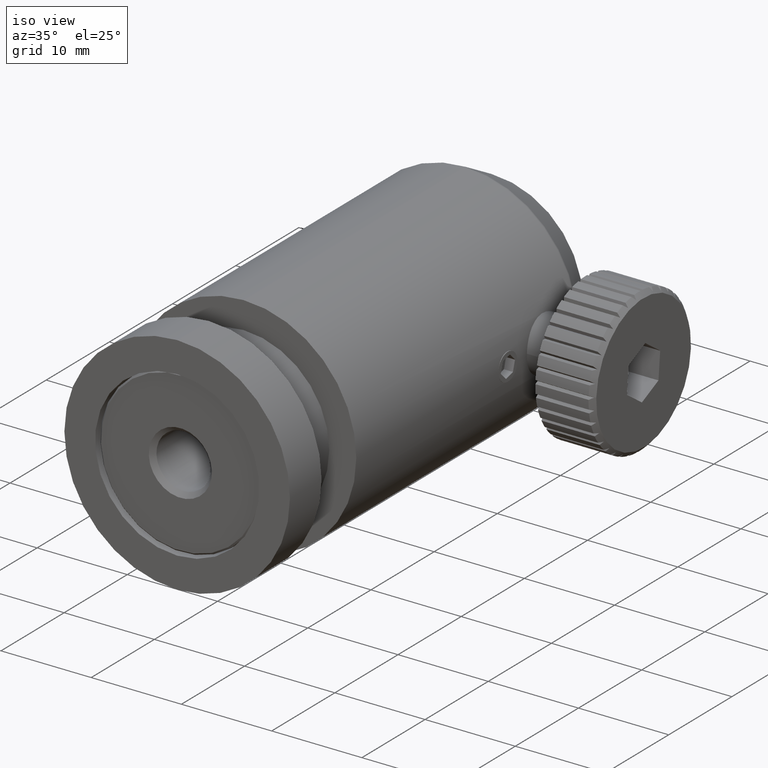
[diagram: clean part render]
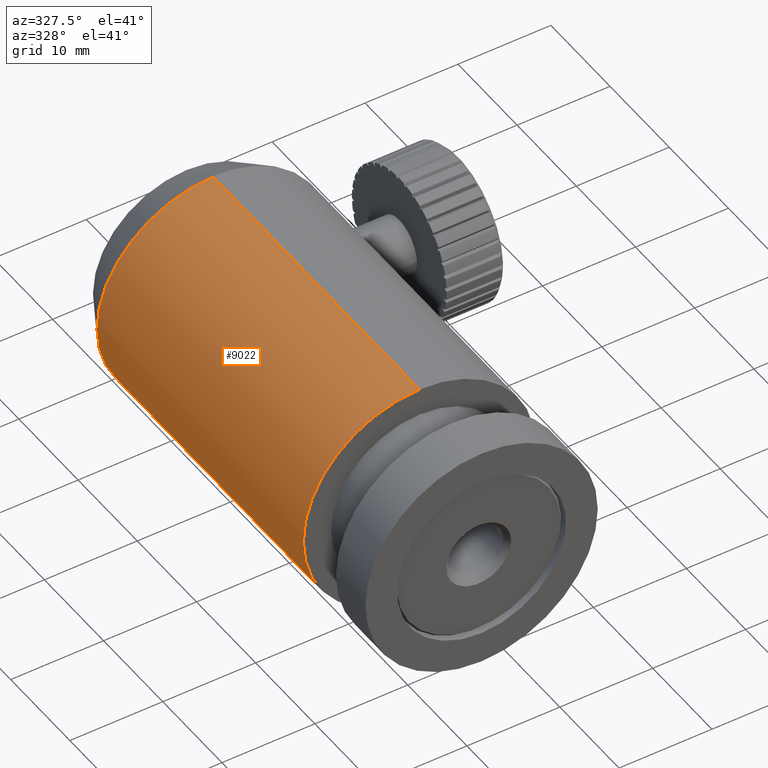
[diagram: tour spotlight — one face highlighted and labeled with its STEP entity id]
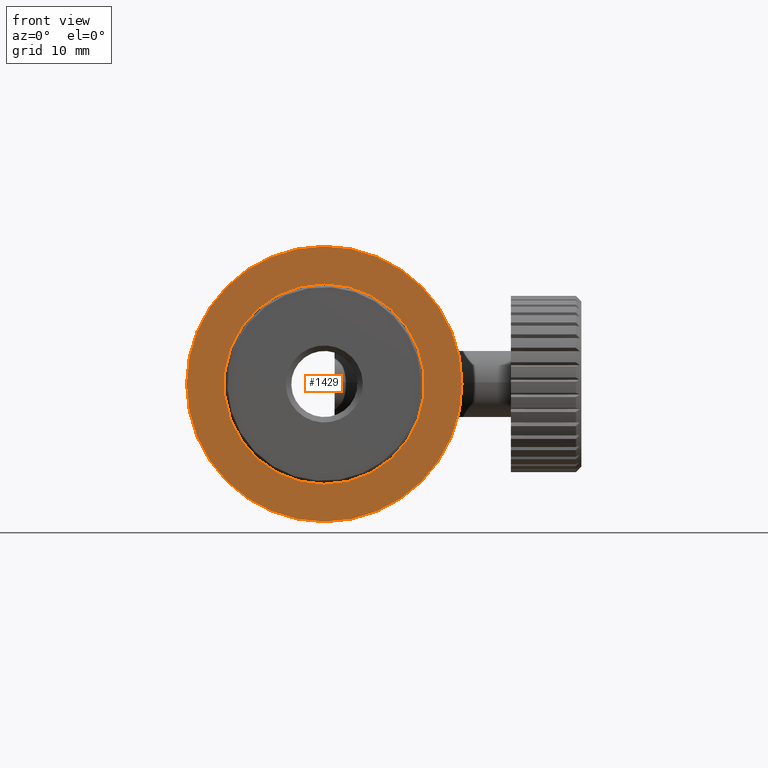
[diagram: tour spotlight — one face highlighted and labeled with its STEP entity id]
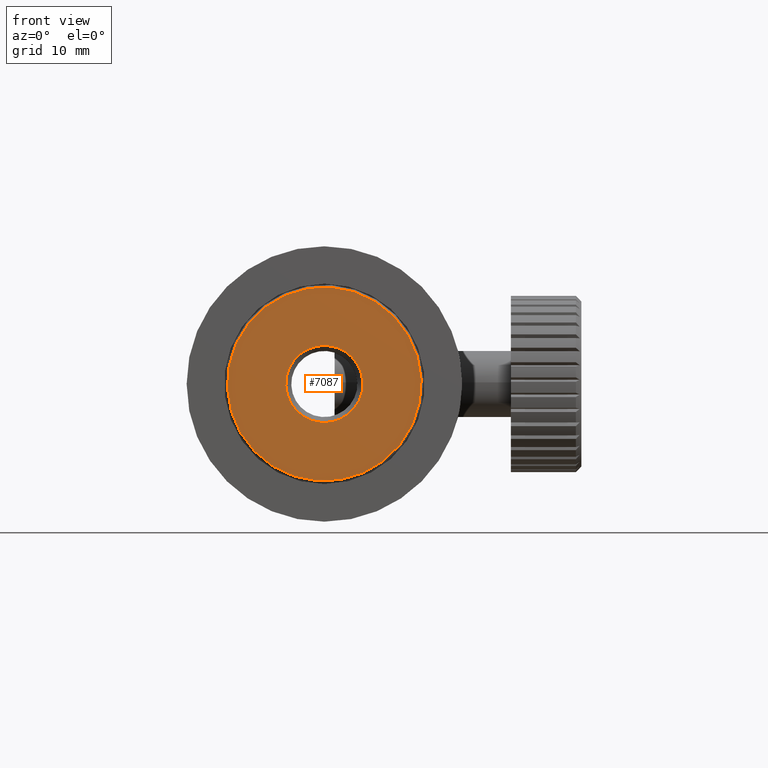
[diagram: tour spotlight — one face highlighted and labeled with its STEP entity id]
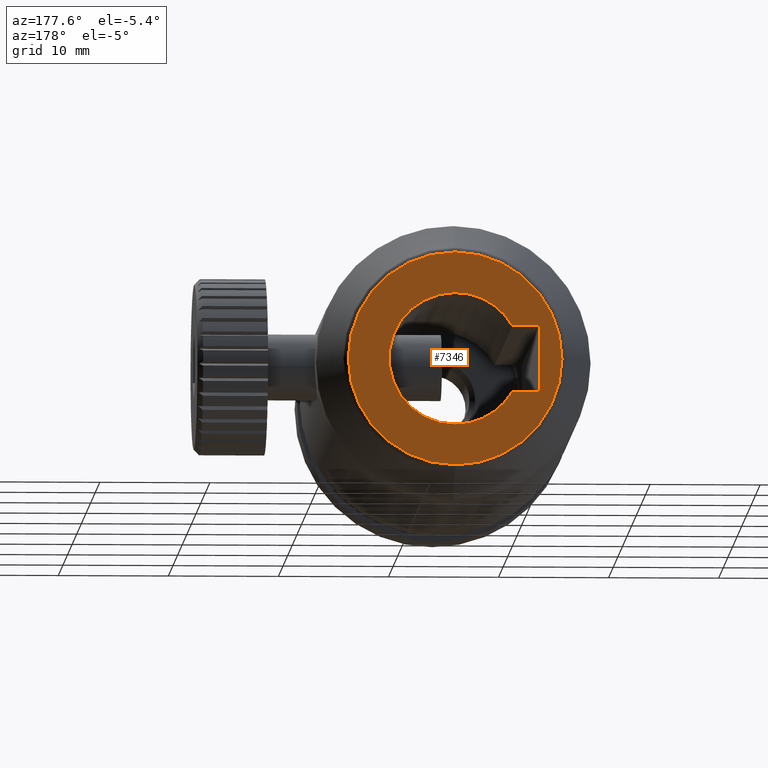
[diagram: tour spotlight — one face highlighted and labeled with its STEP entity id]
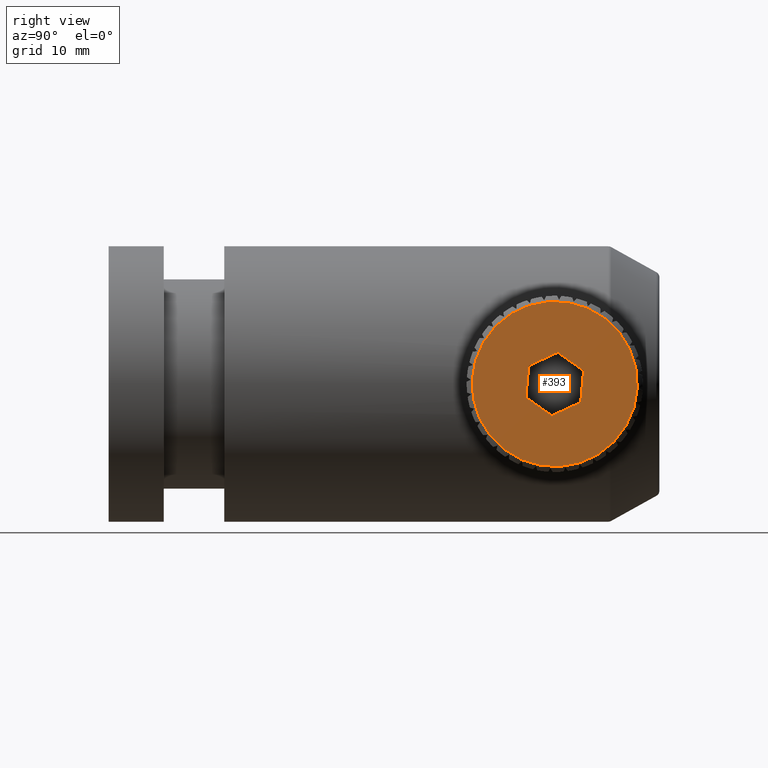
[diagram: tour spotlight — one face highlighted and labeled with its STEP entity id]
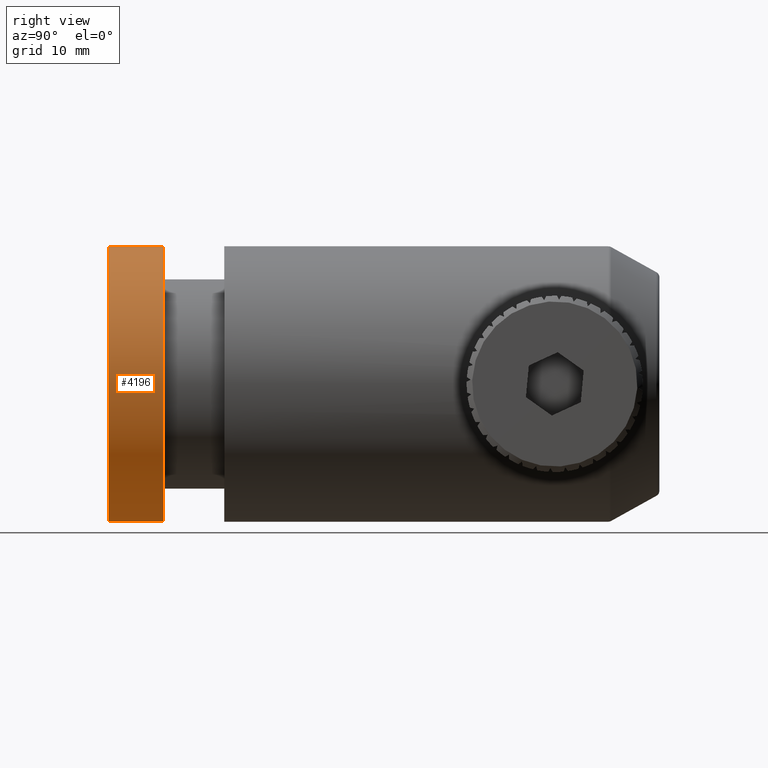
[diagram: tour spotlight — one face highlighted and labeled with its STEP entity id]
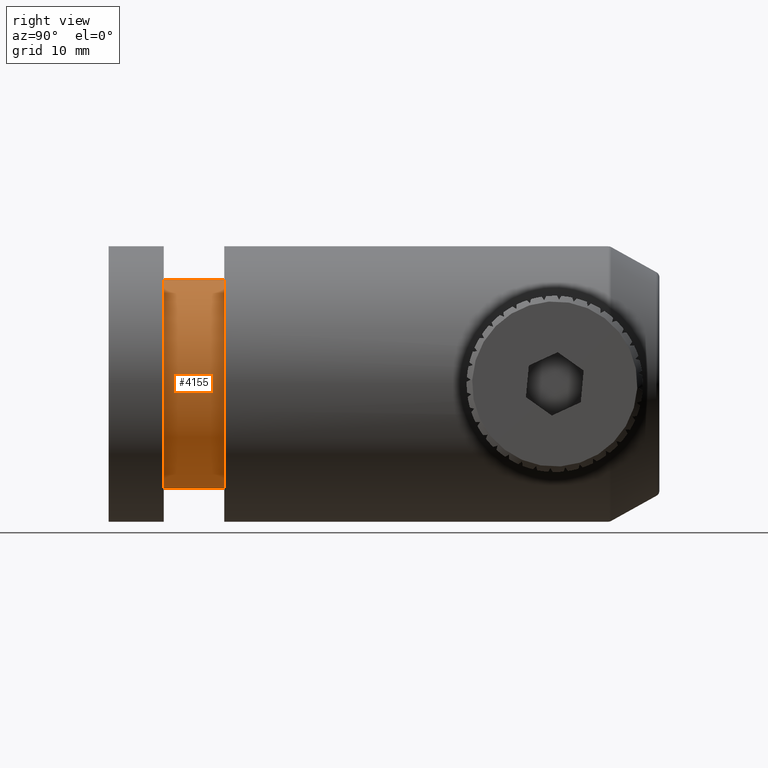
[diagram: tour spotlight — one face highlighted and labeled with its STEP entity id]
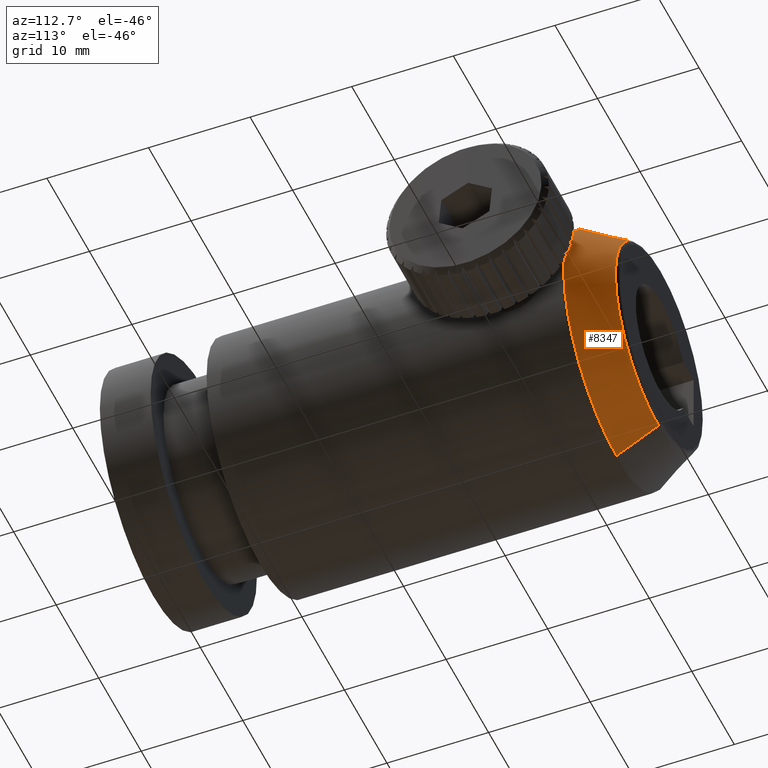
[diagram: tour spotlight — one face highlighted and labeled with its STEP entity id]
A machine part: a face-by-face anatomy tour. The part has 217 B-rep faces; the first image is the clean iso view, then the 8 largest visible faces are spotlighted one at a time (largest first), each with its STEP entity span.

Face 1 — auxiliary view, entity #9022. In plain terms, the highlighted cylindrical surface (partial cylindrical patch) has radius 12.5 mm, axis along (-0, -1, -0).
Definition (entity closure, byte-faithful):
#295 = CARTESIAN_POINT ( 'NONE',  ( -3.204778668925408081, -1.313612059609841731, 12.50000000000000000 ) ) ;
#614 = LINE ( 'NONE', #6234, #8294 ) ;
#933 = ORIENTED_EDGE ( 'NONE', *, *, #8578, .T. ) ;
#1431 = EDGE_CURVE ( 'NONE', #5788, #6335, #9014, .T. ) ;
#1667 = ORIENTED_EDGE ( 'NONE', *, *, #1431, .T. ) ;
#1834 = CIRCLE ( 'NONE', #2854, 12.50000000000000000 ) ;
#1974 = DIRECTION ( 'NONE',  ( 0.0000000000000000000, 0.0000000000000000000, 1.000000000000000000 ) ) ;
#2055 = VERTEX_POINT ( 'NONE', #5466 ) ;
#2651 = DIRECTION ( 'NONE',  ( 0.0000000000000000000, -1.000000000000000000, 0.0000000000000000000 ) ) ;
#2854 = AXIS2_PLACEMENT_3D ( 'NONE', #4682, #2651, #1974 ) ;
#2995 = AXIS2_PLACEMENT_3D ( 'NONE', #4891, #7797, #8338 ) ;
#3582 = EDGE_LOOP ( 'NONE', ( #4615, #933, #8678, #1667 ) ) ;
#3628 = EDGE_CURVE ( 'NONE', #5807, #6335, #614, .T. ) ;
#4103 = DIRECTION ( 'NONE',  ( -0.0000000000000000000, -1.000000000000000000, -0.0000000000000000000 ) ) ;
#4615 = ORIENTED_EDGE ( 'NONE', *, *, #3628, .F. ) ;
#4682 = CARTESIAN_POINT ( 'NONE',  ( -3.204778668925409857, 33.55682492629141933, -7.703719777548943412E-31 ) ) ;
#4891 = CARTESIAN_POINT ( 'NONE',  ( -3.204778668925409857, 38.18638794039016204, -7.703719777548943412E-31 ) ) ;
#5281 = LINE ( 'NONE', #6719, #6330 ) ;
#5339 = DIRECTION ( 'NONE',  ( 0.0000000000000000000, 1.000000000000000000, 0.0000000000000000000 ) ) ;
#5466 = CARTESIAN_POINT ( 'NONE',  ( -3.204778668925408081, 33.55682492629141933, -12.50000000000000000 ) ) ;
#5788 = VERTEX_POINT ( 'NONE', #8317 ) ;
#5807 = VERTEX_POINT ( 'NONE', #8879 ) ;
#6193 = EDGE_CURVE ( 'NONE', #2055, #5788, #5281, .T. ) ;
#6234 = CARTESIAN_POINT ( 'NONE',  ( -3.204778668925408081, 38.18638794039016204, 12.50000000000000000 ) ) ;
#6330 = VECTOR ( 'NONE', #4103, 1000.000000000000000 ) ;
#6335 = VERTEX_POINT ( 'NONE', #295 ) ;
#6719 = CARTESIAN_POINT ( 'NONE',  ( -3.204778668925409857, 38.18638794039016204, -12.50000000000000000 ) ) ;
#6800 = AXIS2_PLACEMENT_3D ( 'NONE', #8844, #5339, #8146 ) ;
#7624 = FACE_OUTER_BOUND ( 'NONE', #3582, .T. ) ;
#7797 = DIRECTION ( 'NONE',  ( -0.0000000000000000000, -1.000000000000000000, -0.0000000000000000000 ) ) ;
#8146 = DIRECTION ( 'NONE',  ( 0.0000000000000000000, 0.0000000000000000000, 1.000000000000000000 ) ) ;
#8294 = VECTOR ( 'NONE', #9033, 1000.000000000000000 ) ;
#8317 = CARTESIAN_POINT ( 'NONE',  ( -3.204778668925409857, -1.313612059609841731, -12.50000000000000000 ) ) ;
#8338 = DIRECTION ( 'NONE',  ( 0.0000000000000000000, 0.0000000000000000000, -1.000000000000000000 ) ) ;
#8578 = EDGE_CURVE ( 'NONE', #5807, #2055, #1834, .T. ) ;
#8678 = ORIENTED_EDGE ( 'NONE', *, *, #6193, .T. ) ;
#8844 = CARTESIAN_POINT ( 'NONE',  ( -3.204778668925409857, -1.313612059609841731, -7.703719777548943412E-31 ) ) ;
#8879 = CARTESIAN_POINT ( 'NONE',  ( -3.204778668925409857, 33.55682492629141933, 12.50000000000000000 ) ) ;
#8994 = CYLINDRICAL_SURFACE ( 'NONE', #2995, 12.50000000000000000 ) ;
#9014 = CIRCLE ( 'NONE', #6800, 12.50000000000000000 ) ;
#9022 = ADVANCED_FACE ( 'NONE', ( #7624 ), #8994, .T. ) ;
#9033 = DIRECTION ( 'NONE',  ( -0.0000000000000000000, -1.000000000000000000, -0.0000000000000000000 ) ) ;

Face 2 — front view, entity #1429. In plain terms, the highlighted planar face has unit normal (0, 1, 0).
Definition (entity closure, byte-faithful):
#60 = CARTESIAN_POINT ( 'NONE',  ( -3.204778668925409857, -11.81361205960983796, -7.703719777548943412E-31 ) ) ;
#75 = AXIS2_PLACEMENT_3D ( 'NONE', #60, #617, #2859 ) ;
#365 = EDGE_CURVE ( 'NONE', #1573, #1713, #7918, .T. ) ;
#388 = DIRECTION ( 'NONE',  ( 0.0000000000000000000, 1.000000000000000000, 0.0000000000000000000 ) ) ;
#427 = CARTESIAN_POINT ( 'NONE',  ( -3.204778668925409857, -11.81361205960983796, -7.703719777548943412E-31 ) ) ;
#537 = CARTESIAN_POINT ( 'NONE',  ( -3.204778668925408525, -11.81361205960983796, 9.099999999999999645 ) ) ;
#601 = EDGE_LOOP ( 'NONE', ( #4424, #1875 ) ) ;
#617 = DIRECTION ( 'NONE',  ( 0.0000000000000000000, -1.000000000000000000, 0.0000000000000000000 ) ) ;
#713 = AXIS2_PLACEMENT_3D ( 'NONE', #4689, #7513, #1202 ) ;
#979 = VERTEX_POINT ( 'NONE', #537 ) ;
#1119 = PLANE ( 'NONE',  #8569 ) ;
#1202 = DIRECTION ( 'NONE',  ( 0.0000000000000000000, 0.0000000000000000000, -1.000000000000000000 ) ) ;
#1429 = ADVANCED_FACE ( 'NONE', ( #7428, #3898 ), #1119, .F. ) ;
#1573 = VERTEX_POINT ( 'NONE', #6187 ) ;
#1713 = VERTEX_POINT ( 'NONE', #8458 ) ;
#1875 = ORIENTED_EDGE ( 'NONE', *, *, #5831, .F. ) ;
#2325 = CIRCLE ( 'NONE', #713, 9.099999999999999645 ) ;
#2355 = VERTEX_POINT ( 'NONE', #8779 ) ;
#2478 = DIRECTION ( 'NONE',  ( 0.0000000000000000000, 0.0000000000000000000, 1.000000000000000000 ) ) ;
#2859 = DIRECTION ( 'NONE',  ( 0.0000000000000000000, 0.0000000000000000000, -1.000000000000000000 ) ) ;
#3219 = DIRECTION ( 'NONE',  ( 0.0000000000000000000, 1.000000000000000000, 0.0000000000000000000 ) ) ;
#3439 = ORIENTED_EDGE ( 'NONE', *, *, #3491, .F. ) ;
#3491 = EDGE_CURVE ( 'NONE', #1713, #1573, #3734, .T. ) ;
#3734 = CIRCLE ( 'NONE', #6398, 12.50000000000000000 ) ;
#3898 = FACE_OUTER_BOUND ( 'NONE', #7587, .T. ) ;
#3993 = DIRECTION ( 'NONE',  ( 0.0000000000000000000, 0.0000000000000000000, 1.000000000000000000 ) ) ;
#4424 = ORIENTED_EDGE ( 'NONE', *, *, #9102, .F. ) ;
#4491 = DIRECTION ( 'NONE',  ( 0.0000000000000000000, 1.000000000000000000, 0.0000000000000000000 ) ) ;
#4689 = CARTESIAN_POINT ( 'NONE',  ( -3.204778668925409857, -11.81361205960983796, -7.703719777548943412E-31 ) ) ;
#5327 = CARTESIAN_POINT ( 'NONE',  ( -3.204778668925409857, -11.81361205960983796, -7.703719777548943412E-31 ) ) ;
#5831 = EDGE_CURVE ( 'NONE', #979, #2355, #2325, .T. ) ;
#6045 = DIRECTION ( 'NONE',  ( 0.0000000000000000000, -0.0000000000000000000, 1.000000000000000000 ) ) ;
#6146 = CARTESIAN_POINT ( 'NONE',  ( -3.204778668925409857, -11.81361205960983796, -7.703719777548943412E-31 ) ) ;
#6187 = CARTESIAN_POINT ( 'NONE',  ( -3.204778668925408081, -11.81361205960983796, 12.50000000000000000 ) ) ;
#6398 = AXIS2_PLACEMENT_3D ( 'NONE', #6146, #388, #3993 ) ;
#7134 = CIRCLE ( 'NONE', #75, 9.099999999999999645 ) ;
#7428 = FACE_BOUND ( 'NONE', #601, .T. ) ;
#7513 = DIRECTION ( 'NONE',  ( 0.0000000000000000000, -1.000000000000000000, 0.0000000000000000000 ) ) ;
#7587 = EDGE_LOOP ( 'NONE', ( #3439, #8638 ) ) ;
#7918 = CIRCLE ( 'NONE', #9094, 12.50000000000000000 ) ;
#8458 = CARTESIAN_POINT ( 'NONE',  ( -3.204778668925409857, -11.81361205960983796, -12.50000000000000000 ) ) ;
#8569 = AXIS2_PLACEMENT_3D ( 'NONE', #427, #3219, #6045 ) ;
#8638 = ORIENTED_EDGE ( 'NONE', *, *, #365, .F. ) ;
#8779 = CARTESIAN_POINT ( 'NONE',  ( -3.204778668925409857, -11.81361205960983796, -9.099999999999999645 ) ) ;
#9094 = AXIS2_PLACEMENT_3D ( 'NONE', #5327, #4491, #2478 ) ;
#9102 = EDGE_CURVE ( 'NONE', #2355, #979, #7134, .T. ) ;

Face 3 — front view, entity #7087. In plain terms, the highlighted planar face has unit normal (-0, 1, 0).
Definition (entity closure, byte-faithful):
#70 = AXIS2_PLACEMENT_3D ( 'NONE', #6240, #5579, #6934 ) ;
#666 = ORIENTED_EDGE ( 'NONE', *, *, #9025, .T. ) ;
#947 = EDGE_LOOP ( 'NONE', ( #666, #8651 ) ) ;
#1042 = VERTEX_POINT ( 'NONE', #1231 ) ;
#1231 = CARTESIAN_POINT ( 'NONE',  ( -5.937706456030204194, -11.31361205960983618, -8.364873323037858910 ) ) ;
#1411 = CIRCLE ( 'NONE', #3733, 3.500000000000000000 ) ;
#1469 = EDGE_LOOP ( 'NONE', ( #8549, #6176 ) ) ;
#1695 = CIRCLE ( 'NONE', #7292, 8.799999999999995381 ) ;
#2011 = EDGE_CURVE ( 'NONE', #1042, #6655, #1695, .T. ) ;
#2084 = CARTESIAN_POINT ( 'NONE',  ( -4.291738584251182154, -11.31361205960983618, -3.326938253480967500 ) ) ;
#2421 = CARTESIAN_POINT ( 'NONE',  ( -0.4718508818206141320, -11.31361205960983618, 8.364873323037858910 ) ) ;
#2537 = DIRECTION ( 'NONE',  ( 0.0000000000000000000, 1.000000000000000000, 0.0000000000000000000 ) ) ;
#2624 = CARTESIAN_POINT ( 'NONE',  ( -3.204778668925409857, -11.31361205960983618, -7.703719777548943412E-31 ) ) ;
#2842 = EDGE_CURVE ( 'NONE', #4000, #7498, #1411, .T. ) ;
#3293 = DIRECTION ( 'NONE',  ( -0.0000000000000000000, -1.000000000000000000, -0.0000000000000000000 ) ) ;
#3507 = AXIS2_PLACEMENT_3D ( 'NONE', #7120, #8528, #5035 ) ;
#3656 = DIRECTION ( 'NONE',  ( 0.3105599758073633310, 0.0000000000000000000, 0.9505537867088478254 ) ) ;
#3680 = FACE_BOUND ( 'NONE', #1469, .T. ) ;
#3684 = CIRCLE ( 'NONE', #5749, 3.500000000000000000 ) ;
#3733 = AXIS2_PLACEMENT_3D ( 'NONE', #2624, #2537, #6047 ) ;
#4000 = VERTEX_POINT ( 'NONE', #7278 ) ;
#4022 = CARTESIAN_POINT ( 'NONE',  ( -3.204778668925409857, -11.31361205960983618, -7.703719777548943412E-31 ) ) ;
#5035 = DIRECTION ( 'NONE',  ( 0.3105599758073633310, 0.0000000000000000000, 0.9505537867088479365 ) ) ;
#5579 = DIRECTION ( 'NONE',  ( -0.0000000000000000000, -1.000000000000000000, -0.0000000000000000000 ) ) ;
#5749 = AXIS2_PLACEMENT_3D ( 'NONE', #8500, #7098, #3656 ) ;
#5768 = FACE_OUTER_BOUND ( 'NONE', #947, .T. ) ;
#6047 = DIRECTION ( 'NONE',  ( 0.3105599758073633310, 0.0000000000000000000, 0.9505537867088478254 ) ) ;
#6176 = ORIENTED_EDGE ( 'NONE', *, *, #2842, .T. ) ;
#6240 = CARTESIAN_POINT ( 'NONE',  ( -3.204778668925409857, -11.31361205960983618, -7.703719777548943412E-31 ) ) ;
#6537 = CIRCLE ( 'NONE', #70, 8.799999999999995381 ) ;
#6655 = VERTEX_POINT ( 'NONE', #2421 ) ;
#6864 = DIRECTION ( 'NONE',  ( 0.3105599758073633310, 0.0000000000000000000, 0.9505537867088479365 ) ) ;
#6934 = DIRECTION ( 'NONE',  ( 0.3105599758073633310, 0.0000000000000000000, 0.9505537867088479365 ) ) ;
#7087 = ADVANCED_FACE ( 'NONE', ( #3680, #5768 ), #8624, .F. ) ;
#7098 = DIRECTION ( 'NONE',  ( 0.0000000000000000000, 1.000000000000000000, 0.0000000000000000000 ) ) ;
#7120 = CARTESIAN_POINT ( 'NONE',  ( -3.204778668925409857, -11.31361205960983618, -7.703719777548943412E-31 ) ) ;
#7278 = CARTESIAN_POINT ( 'NONE',  ( -2.117818753599638004, -11.31361205960983618, 3.326938253480967500 ) ) ;
#7292 = AXIS2_PLACEMENT_3D ( 'NONE', #4022, #3293, #6864 ) ;
#7498 = VERTEX_POINT ( 'NONE', #2084 ) ;
#8196 = EDGE_CURVE ( 'NONE', #7498, #4000, #3684, .T. ) ;
#8500 = CARTESIAN_POINT ( 'NONE',  ( -3.204778668925409857, -11.31361205960983618, -7.703719777548943412E-31 ) ) ;
#8528 = DIRECTION ( 'NONE',  ( -0.0000000000000000000, 1.000000000000000000, 0.0000000000000000000 ) ) ;
#8549 = ORIENTED_EDGE ( 'NONE', *, *, #8196, .T. ) ;
#8624 = PLANE ( 'NONE',  #3507 ) ;
#8651 = ORIENTED_EDGE ( 'NONE', *, *, #2011, .T. ) ;
#9025 = EDGE_CURVE ( 'NONE', #6655, #1042, #6537, .T. ) ;

Face 4 — auxiliary view, entity #7346. In plain terms, the highlighted planar face has unit normal (0, 1, 0).
Definition (entity closure, byte-faithful):
#168 = VERTEX_POINT ( 'NONE', #5837 ) ;
#211 = CIRCLE ( 'NONE', #7447, 6.000000000000000000 ) ;
#238 = DIRECTION ( 'NONE',  ( -1.000000000000000000, -0.0000000000000000000, -0.0000000000000000000 ) ) ;
#391 = DIRECTION ( 'NONE',  ( 0.0000000000000000000, -0.0000000000000000000, 1.000000000000000000 ) ) ;
#974 = LINE ( 'NONE', #7157, #1639 ) ;
#1224 = VERTEX_POINT ( 'NONE', #2987 ) ;
#1559 = VERTEX_POINT ( 'NONE', #3484 ) ;
#1600 = ORIENTED_EDGE ( 'NONE', *, *, #7703, .F. ) ;
#1604 = AXIS2_PLACEMENT_3D ( 'NONE', #8897, #8856, #6796 ) ;
#1639 = VECTOR ( 'NONE', #238, 1000.000000000000000 ) ;
#1726 = ORIENTED_EDGE ( 'NONE', *, *, #1851, .T. ) ;
#1851 = EDGE_CURVE ( 'NONE', #168, #1224, #9051, .T. ) ;
#1881 = EDGE_CURVE ( 'NONE', #1559, #5856, #2570, .T. ) ;
#1889 = AXIS2_PLACEMENT_3D ( 'NONE', #3991, #2628, #9030 ) ;
#1959 = VERTEX_POINT ( 'NONE', #4111 ) ;
#2316 = VECTOR ( 'NONE', #5290, 1000.000000000000000 ) ;
#2386 = CARTESIAN_POINT ( 'NONE',  ( -10.85477866892541066, 38.18638794039016204, 3.000000000000000000 ) ) ;
#2400 = CARTESIAN_POINT ( 'NONE',  ( -10.85477866892541066, 38.18638794039016204, -3.000000000000000000 ) ) ;
#2422 = AXIS2_PLACEMENT_3D ( 'NONE', #8401, #6798, #2546 ) ;
#2435 = CARTESIAN_POINT ( 'NONE',  ( -3.204778668925409857, 38.18638794039016204, -7.703719777548943412E-31 ) ) ;
#2546 = DIRECTION ( 'NONE',  ( 0.0000000000000000000, 0.0000000000000000000, 1.000000000000000000 ) ) ;
#2570 = LINE ( 'NONE', #2386, #7150 ) ;
#2592 = DIRECTION ( 'NONE',  ( 0.0000000000000000000, 0.0000000000000000000, 1.000000000000000000 ) ) ;
#2594 = VERTEX_POINT ( 'NONE', #6812 ) ;
#2628 = DIRECTION ( 'NONE',  ( 0.0000000000000000000, 1.000000000000000000, 0.0000000000000000000 ) ) ;
#2705 = CARTESIAN_POINT ( 'NONE',  ( -8.400931091632044101, 38.18638794039016204, 2.999999999999996003 ) ) ;
#2755 = VERTEX_POINT ( 'NONE', #2400 ) ;
#2947 = ORIENTED_EDGE ( 'NONE', *, *, #5219, .F. ) ;
#2987 = CARTESIAN_POINT ( 'NONE',  ( -3.204778668925408525, 38.18638794039016204, -9.705798325500706980 ) ) ;
#3224 = EDGE_CURVE ( 'NONE', #1959, #2594, #211, .T. ) ;
#3232 = CARTESIAN_POINT ( 'NONE',  ( -3.204778668925409857, 38.18638794039016204, -7.703719777548943412E-31 ) ) ;
#3484 = CARTESIAN_POINT ( 'NONE',  ( -10.85477866892541066, 38.18638794039016204, 3.000000000000000000 ) ) ;
#3758 = EDGE_LOOP ( 'NONE', ( #1726, #5904 ) ) ;
#3843 = CARTESIAN_POINT ( 'NONE',  ( -10.85477866892541066, 38.18638794039016204, -3.000000000000000000 ) ) ;
#3991 = CARTESIAN_POINT ( 'NONE',  ( -3.204778668925409857, 38.18638794039016204, -7.703719777548943412E-31 ) ) ;
#4091 = CIRCLE ( 'NONE', #1604, 6.000000000000000000 ) ;
#4111 = CARTESIAN_POINT ( 'NONE',  ( -3.204778668925409857, 38.18638794039016204, 6.000000000000000000 ) ) ;
#4466 = CIRCLE ( 'NONE', #2422, 6.000000000000000000 ) ;
#4684 = DIRECTION ( 'NONE',  ( 0.0000000000000000000, 0.0000000000000000000, 1.000000000000000000 ) ) ;
#4910 = EDGE_CURVE ( 'NONE', #1224, #168, #5408, .T. ) ;
#5133 = ORIENTED_EDGE ( 'NONE', *, *, #8766, .F. ) ;
#5219 = EDGE_CURVE ( 'NONE', #2755, #1559, #6730, .T. ) ;
#5290 = DIRECTION ( 'NONE',  ( 1.445602896647339163E-16, 0.0000000000000000000, 1.000000000000000000 ) ) ;
#5396 = FACE_OUTER_BOUND ( 'NONE', #3758, .T. ) ;
#5408 = CIRCLE ( 'NONE', #1889, 9.705798325500706980 ) ;
#5447 = CARTESIAN_POINT ( 'NONE',  ( -3.204778668925409857, 38.18638794039016204, -7.703719777548943412E-31 ) ) ;
#5449 = ORIENTED_EDGE ( 'NONE', *, *, #7288, .F. ) ;
#5837 = CARTESIAN_POINT ( 'NONE',  ( -3.204778668925409857, 38.18638794039016204, 9.705798325500706980 ) ) ;
#5856 = VERTEX_POINT ( 'NONE', #2705 ) ;
#5889 = DIRECTION ( 'NONE',  ( 0.0000000000000000000, 1.000000000000000000, 0.0000000000000000000 ) ) ;
#5904 = ORIENTED_EDGE ( 'NONE', *, *, #4910, .T. ) ;
#6100 = DIRECTION ( 'NONE',  ( 0.0000000000000000000, 1.000000000000000000, 0.0000000000000000000 ) ) ;
#6104 = ORIENTED_EDGE ( 'NONE', *, *, #3224, .F. ) ;
#6204 = CARTESIAN_POINT ( 'NONE',  ( -8.400931091632042325, 38.18638794039016204, -3.000000000000000000 ) ) ;
#6654 = FACE_BOUND ( 'NONE', #8127, .T. ) ;
#6702 = DIRECTION ( 'NONE',  ( 0.0000000000000000000, 1.000000000000000000, 0.0000000000000000000 ) ) ;
#6730 = LINE ( 'NONE', #3843, #2316 ) ;
#6749 = PLANE ( 'NONE',  #7931 ) ;
#6796 = DIRECTION ( 'NONE',  ( 0.0000000000000000000, 0.0000000000000000000, 1.000000000000000000 ) ) ;
#6798 = DIRECTION ( 'NONE',  ( 0.0000000000000000000, 1.000000000000000000, 0.0000000000000000000 ) ) ;
#6812 = CARTESIAN_POINT ( 'NONE',  ( -3.204778668925408969, 38.18638794039016204, -6.000000000000000000 ) ) ;
#6933 = ORIENTED_EDGE ( 'NONE', *, *, #1881, .F. ) ;
#6998 = VERTEX_POINT ( 'NONE', #6204 ) ;
#7150 = VECTOR ( 'NONE', #8095, 1000.000000000000000 ) ;
#7157 = CARTESIAN_POINT ( 'NONE',  ( -10.85477866892541066, 38.18638794039016204, -3.000000000000000000 ) ) ;
#7288 = EDGE_CURVE ( 'NONE', #5856, #1959, #4091, .T. ) ;
#7346 = ADVANCED_FACE ( 'NONE', ( #6654, #5396 ), #6749, .T. ) ;
#7447 = AXIS2_PLACEMENT_3D ( 'NONE', #5447, #6100, #2592 ) ;
#7703 = EDGE_CURVE ( 'NONE', #6998, #2755, #974, .T. ) ;
#7931 = AXIS2_PLACEMENT_3D ( 'NONE', #3232, #6702, #391 ) ;
#8095 = DIRECTION ( 'NONE',  ( 1.000000000000000000, 0.0000000000000000000, -1.767350478518959134E-15 ) ) ;
#8127 = EDGE_LOOP ( 'NONE', ( #2947, #1600, #5133, #6104, #5449, #6933 ) ) ;
#8307 = AXIS2_PLACEMENT_3D ( 'NONE', #2435, #5889, #4684 ) ;
#8401 = CARTESIAN_POINT ( 'NONE',  ( -3.204778668925409857, 38.18638794039016204, -7.703719777548943412E-31 ) ) ;
#8766 = EDGE_CURVE ( 'NONE', #2594, #6998, #4466, .T. ) ;
#8856 = DIRECTION ( 'NONE',  ( 0.0000000000000000000, 1.000000000000000000, 0.0000000000000000000 ) ) ;
#8897 = CARTESIAN_POINT ( 'NONE',  ( -3.204778668925409857, 38.18638794039016204, -7.703719777548943412E-31 ) ) ;
#9030 = DIRECTION ( 'NONE',  ( 0.0000000000000000000, 0.0000000000000000000, 1.000000000000000000 ) ) ;
#9051 = CIRCLE ( 'NONE', #8307, 9.705798325500706980 ) ;

Face 5 — right view, entity #393. In plain terms, the highlighted planar face has unit normal (-1, -0, 0).
Definition (entity closure, byte-faithful):
#109 = EDGE_CURVE ( 'NONE', #4941, #6290, #7559, .T. ) ;
#334 = CARTESIAN_POINT ( 'NONE',  ( 20.13128916436951243, 26.33031268923695123, 1.668005618766498444 ) ) ;
#351 = AXIS2_PLACEMENT_3D ( 'NONE', #1836, #7324, #5885 ) ;
#359 = VECTOR ( 'NONE', #1086, 1000.000000000000000 ) ;
#393 = ADVANCED_FACE ( 'NONE', ( #1694, #8132 ), #3740, .F. ) ;
#646 = CARTESIAN_POINT ( 'NONE',  ( 20.13128916436951243, 28.41989032645981794, -2.874423830109741562 ) ) ;
#651 = DIRECTION ( 'NONE',  ( 1.000000000000000000, 1.264548628736567753E-17, -2.220446049250312588E-16 ) ) ;
#914 = LINE ( 'NONE', #1474, #4877 ) ;
#1086 = DIRECTION ( 'NONE',  ( 1.395582776585113026E-16, -0.8161684082905975579, 0.5778140958027871976 ) ) ;
#1180 = LINE ( 'NONE', #2506, #359 ) ;
#1408 = ORIENTED_EDGE ( 'NONE', *, *, #4995, .T. ) ;
#1419 = LINE ( 'NONE', #5781, #4782 ) ;
#1474 = CARTESIAN_POINT ( 'NONE',  ( 20.13128916436951243, 26.06381507530659647, -1.206418211343244895 ) ) ;
#1481 = DIRECTION ( 'NONE',  ( 0.0000000000000000000, -0.9987437986324323447, 0.05010813001160041580 ) ) ;
#1541 = VERTEX_POINT ( 'NONE', #646 ) ;
#1650 = CARTESIAN_POINT ( 'NONE',  ( 20.13128916436951243, 36.17696643013342594, -0.3758109750870026189 ) ) ;
#1694 = FACE_BOUND ( 'NONE', #6659, .T. ) ;
#1836 = CARTESIAN_POINT ( 'NONE',  ( 20.13128916436951243, 28.68638794039017270, -1.556053078393199604E-30 ) ) ;
#2116 = EDGE_CURVE ( 'NONE', #1541, #4941, #1419, .T. ) ;
#2506 = CARTESIAN_POINT ( 'NONE',  ( 20.13128916436951243, 31.30896080547375249, 1.206418211343244895 ) ) ;
#2529 = LINE ( 'NONE', #8007, #8636 ) ;
#2800 = DIRECTION ( 'NONE',  ( 2.208183136120873328E-16, 0.09231748148465018788, 0.9957296232473609177 ) ) ;
#3024 = VERTEX_POINT ( 'NONE', #334 ) ;
#3051 = AXIS2_PLACEMENT_3D ( 'NONE', #8238, #651, #3443 ) ;
#3341 = CARTESIAN_POINT ( 'NONE',  ( 20.13128916436951243, 21.19580945064692301, 0.3758109750870035071 ) ) ;
#3443 = DIRECTION ( 'NONE',  ( 0.0000000000000000000, -0.9987437986324323447, 0.05010813001160041580 ) ) ;
#3481 = CARTESIAN_POINT ( 'NONE',  ( 20.13128916436951243, 31.04246319154339773, -1.668005618766497555 ) ) ;
#3483 = ORIENTED_EDGE ( 'NONE', *, *, #2116, .F. ) ;
#3596 = ORIENTED_EDGE ( 'NONE', *, *, #109, .F. ) ;
#3601 = DIRECTION ( 'NONE',  ( 8.126003595357596861E-17, 0.9084858897752480233, 0.4179155274445735535 ) ) ;
#3663 = CARTESIAN_POINT ( 'NONE',  ( 20.13128916436951243, 28.68638794039017270, -1.556053078393199604E-30 ) ) ;
#3740 = PLANE ( 'NONE',  #351 ) ;
#3774 = CIRCLE ( 'NONE', #8946, 7.500000000000007994 ) ;
#3973 = CARTESIAN_POINT ( 'NONE',  ( 20.13128916436951243, 31.30896080547375249, 1.206418211343244895 ) ) ;
#4256 = DIRECTION ( 'NONE',  ( -1.395582776585113026E-16, 0.8161684082905976689, -0.5778140958027870866 ) ) ;
#4400 = ORIENTED_EDGE ( 'NONE', *, *, #4939, .T. ) ;
#4419 = DIRECTION ( 'NONE',  ( -2.208183136120873328E-16, -0.09231748148465016013, -0.9957296232473609177 ) ) ;
#4782 = VECTOR ( 'NONE', #3601, 999.9999999999998863 ) ;
#4877 = VECTOR ( 'NONE', #4256, 999.9999999999998863 ) ;
#4939 = EDGE_CURVE ( 'NONE', #5839, #8436, #7042, .T. ) ;
#4941 = VERTEX_POINT ( 'NONE', #8987 ) ;
#4950 = ORIENTED_EDGE ( 'NONE', *, *, #8925, .F. ) ;
#4995 = EDGE_CURVE ( 'NONE', #8436, #5839, #3774, .T. ) ;
#5232 = CARTESIAN_POINT ( 'NONE',  ( 20.13128916436951243, 26.06381507530659647, -1.206418211343244895 ) ) ;
#5240 = VECTOR ( 'NONE', #2800, 1000.000000000000000 ) ;
#5547 = LINE ( 'NONE', #7891, #8497 ) ;
#5719 = EDGE_CURVE ( 'NONE', #7654, #3024, #2529, .T. ) ;
#5781 = CARTESIAN_POINT ( 'NONE',  ( 20.13128916436951243, 28.41989032645981794, -2.874423830109741562 ) ) ;
#5839 = VERTEX_POINT ( 'NONE', #3341 ) ;
#5885 = DIRECTION ( 'NONE',  ( 2.428612866367530240E-17, -0.9987437986324323447, 0.05010813001160040886 ) ) ;
#6048 = VERTEX_POINT ( 'NONE', #5232 ) ;
#6290 = VERTEX_POINT ( 'NONE', #3973 ) ;
#6350 = EDGE_CURVE ( 'NONE', #3024, #6048, #5547, .T. ) ;
#6659 = EDGE_LOOP ( 'NONE', ( #8602, #4950, #3596, #3483, #7535, #8413 ) ) ;
#7042 = CIRCLE ( 'NONE', #3051, 7.500000000000007994 ) ;
#7279 = DIRECTION ( 'NONE',  ( -8.126003595357593163E-17, -0.9084858897752479123, -0.4179155274445734425 ) ) ;
#7324 = DIRECTION ( 'NONE',  ( -1.000000000000000000, -1.317510786072415822E-17, 2.220711766511247388E-16 ) ) ;
#7535 = ORIENTED_EDGE ( 'NONE', *, *, #8282, .F. ) ;
#7559 = LINE ( 'NONE', #3481, #5240 ) ;
#7654 = VERTEX_POINT ( 'NONE', #8243 ) ;
#7825 = EDGE_LOOP ( 'NONE', ( #4400, #1408 ) ) ;
#7831 = DIRECTION ( 'NONE',  ( 1.000000000000000000, 1.264548628736567753E-17, -2.220446049250312588E-16 ) ) ;
#7891 = CARTESIAN_POINT ( 'NONE',  ( 20.13128916436951243, 26.33031268923695123, 1.668005618766498444 ) ) ;
#8007 = CARTESIAN_POINT ( 'NONE',  ( 20.13128916436951243, 28.95288555432052746, 2.874423830109742006 ) ) ;
#8132 = FACE_OUTER_BOUND ( 'NONE', #7825, .T. ) ;
#8238 = CARTESIAN_POINT ( 'NONE',  ( 20.13128916436951243, 28.68638794039017270, -1.556053078393199604E-30 ) ) ;
#8243 = CARTESIAN_POINT ( 'NONE',  ( 20.13128916436951243, 28.95288555432052746, 2.874423830109742006 ) ) ;
#8282 = EDGE_CURVE ( 'NONE', #6048, #1541, #914, .T. ) ;
#8413 = ORIENTED_EDGE ( 'NONE', *, *, #6350, .F. ) ;
#8436 = VERTEX_POINT ( 'NONE', #1650 ) ;
#8497 = VECTOR ( 'NONE', #4419, 1000.000000000000114 ) ;
#8602 = ORIENTED_EDGE ( 'NONE', *, *, #5719, .F. ) ;
#8636 = VECTOR ( 'NONE', #7279, 1000.000000000000227 ) ;
#8925 = EDGE_CURVE ( 'NONE', #6290, #7654, #1180, .T. ) ;
#8946 = AXIS2_PLACEMENT_3D ( 'NONE', #3663, #7831, #1481 ) ;
#8987 = CARTESIAN_POINT ( 'NONE',  ( 20.13128916436951243, 31.04246319154339773, -1.668005618766497555 ) ) ;

Face 6 — right view, entity #4196. In plain terms, the highlighted cylindrical surface (partial cylindrical patch) has radius 12.5 mm, axis along (-0, -1, -0).
Definition (entity closure, byte-faithful):
#40 = CARTESIAN_POINT ( 'NONE',  ( -3.204778668925409857, 38.18638794039016204, -7.703719777548943412E-31 ) ) ;
#365 = EDGE_CURVE ( 'NONE', #1573, #1713, #7918, .T. ) ;
#441 = LINE ( 'NONE', #5351, #4909 ) ;
#685 = DIRECTION ( 'NONE',  ( 0.0000000000000000000, 0.0000000000000000000, -1.000000000000000000 ) ) ;
#1028 = ORIENTED_EDGE ( 'NONE', *, *, #3286, .T. ) ;
#1087 = DIRECTION ( 'NONE',  ( -0.0000000000000000000, -1.000000000000000000, -0.0000000000000000000 ) ) ;
#1181 = DIRECTION ( 'NONE',  ( -0.0000000000000000000, -1.000000000000000000, -0.0000000000000000000 ) ) ;
#1421 = CYLINDRICAL_SURFACE ( 'NONE', #4048, 12.50000000000000000 ) ;
#1573 = VERTEX_POINT ( 'NONE', #6187 ) ;
#1707 = DIRECTION ( 'NONE',  ( 0.0000000000000000000, 0.0000000000000000000, -1.000000000000000000 ) ) ;
#1713 = VERTEX_POINT ( 'NONE', #8458 ) ;
#1850 = CARTESIAN_POINT ( 'NONE',  ( -3.204778668925409857, -6.813612059609839733, -7.703719777548943412E-31 ) ) ;
#2079 = AXIS2_PLACEMENT_3D ( 'NONE', #1850, #8187, #1707 ) ;
#2144 = VECTOR ( 'NONE', #1087, 1000.000000000000000 ) ;
#2406 = CARTESIAN_POINT ( 'NONE',  ( -3.204778668925409857, -6.813612059609839733, -12.50000000000000000 ) ) ;
#2417 = ORIENTED_EDGE ( 'NONE', *, *, #3160, .F. ) ;
#2478 = DIRECTION ( 'NONE',  ( 0.0000000000000000000, 0.0000000000000000000, 1.000000000000000000 ) ) ;
#2593 = ORIENTED_EDGE ( 'NONE', *, *, #365, .T. ) ;
#3160 = EDGE_CURVE ( 'NONE', #4848, #1713, #441, .T. ) ;
#3286 = EDGE_CURVE ( 'NONE', #7074, #1573, #4568, .T. ) ;
#3563 = DIRECTION ( 'NONE',  ( -0.0000000000000000000, -1.000000000000000000, -0.0000000000000000000 ) ) ;
#4048 = AXIS2_PLACEMENT_3D ( 'NONE', #40, #3563, #685 ) ;
#4161 = FACE_OUTER_BOUND ( 'NONE', #4803, .T. ) ;
#4196 = ADVANCED_FACE ( 'NONE', ( #4161 ), #1421, .T. ) ;
#4389 = ORIENTED_EDGE ( 'NONE', *, *, #7859, .T. ) ;
#4491 = DIRECTION ( 'NONE',  ( 0.0000000000000000000, 1.000000000000000000, 0.0000000000000000000 ) ) ;
#4568 = LINE ( 'NONE', #7398, #2144 ) ;
#4803 = EDGE_LOOP ( 'NONE', ( #4389, #1028, #2593, #2417 ) ) ;
#4848 = VERTEX_POINT ( 'NONE', #2406 ) ;
#4909 = VECTOR ( 'NONE', #1181, 1000.000000000000000 ) ;
#5327 = CARTESIAN_POINT ( 'NONE',  ( -3.204778668925409857, -11.81361205960983796, -7.703719777548943412E-31 ) ) ;
#5351 = CARTESIAN_POINT ( 'NONE',  ( -3.204778668925409857, 38.18638794039016204, -12.50000000000000000 ) ) ;
#5743 = CIRCLE ( 'NONE', #2079, 12.50000000000000000 ) ;
#6187 = CARTESIAN_POINT ( 'NONE',  ( -3.204778668925408081, -11.81361205960983796, 12.50000000000000000 ) ) ;
#7074 = VERTEX_POINT ( 'NONE', #7894 ) ;
#7398 = CARTESIAN_POINT ( 'NONE',  ( -3.204778668925408081, 38.18638794039016204, 12.50000000000000000 ) ) ;
#7859 = EDGE_CURVE ( 'NONE', #4848, #7074, #5743, .T. ) ;
#7894 = CARTESIAN_POINT ( 'NONE',  ( -3.204778668925408081, -6.813612059609839733, 12.50000000000000000 ) ) ;
#7918 = CIRCLE ( 'NONE', #9094, 12.50000000000000000 ) ;
#8187 = DIRECTION ( 'NONE',  ( -0.0000000000000000000, -1.000000000000000000, -0.0000000000000000000 ) ) ;
#8458 = CARTESIAN_POINT ( 'NONE',  ( -3.204778668925409857, -11.81361205960983796, -12.50000000000000000 ) ) ;
#9094 = AXIS2_PLACEMENT_3D ( 'NONE', #5327, #4491, #2478 ) ;

Face 7 — right view, entity #4155. In plain terms, the highlighted cylindrical surface (partial cylindrical patch) has radius 9.5 mm, axis along (-0, -1, -0).
Definition (entity closure, byte-faithful):
#775 = EDGE_CURVE ( 'NONE', #4965, #7553, #5004, .T. ) ;
#1744 = AXIS2_PLACEMENT_3D ( 'NONE', #7640, #4726, #3416 ) ;
#1841 = FACE_OUTER_BOUND ( 'NONE', #7127, .T. ) ;
#1949 = CARTESIAN_POINT ( 'NONE',  ( -3.204778668925409857, -1.313612059609838401, -9.500000000000000000 ) ) ;
#2102 = CARTESIAN_POINT ( 'NONE',  ( -3.204778668925409857, -11.81361205960983796, -9.500000000000000000 ) ) ;
#2282 = DIRECTION ( 'NONE',  ( -0.0000000000000000000, -1.000000000000000000, -0.0000000000000000000 ) ) ;
#2563 = CIRCLE ( 'NONE', #6842, 9.500000000000000000 ) ;
#2614 = CARTESIAN_POINT ( 'NONE',  ( -3.204778668925409857, -11.81361205960983796, -7.703719777548943412E-31 ) ) ;
#2687 = EDGE_CURVE ( 'NONE', #3138, #4480, #8709, .T. ) ;
#2728 = ORIENTED_EDGE ( 'NONE', *, *, #2687, .T. ) ;
#3138 = VERTEX_POINT ( 'NONE', #8769 ) ;
#3173 = AXIS2_PLACEMENT_3D ( 'NONE', #2614, #8137, #4638 ) ;
#3416 = DIRECTION ( 'NONE',  ( 0.0000000000000000000, 0.0000000000000000000, -1.000000000000000000 ) ) ;
#4153 = CARTESIAN_POINT ( 'NONE',  ( -3.204778668925409857, -1.313612059609838401, -7.703719777548943412E-31 ) ) ;
#4155 = ADVANCED_FACE ( 'NONE', ( #1841 ), #6127, .T. ) ;
#4480 = VERTEX_POINT ( 'NONE', #8963 ) ;
#4638 = DIRECTION ( 'NONE',  ( 0.0000000000000000000, 0.0000000000000000000, -1.000000000000000000 ) ) ;
#4726 = DIRECTION ( 'NONE',  ( -0.0000000000000000000, -1.000000000000000000, -0.0000000000000000000 ) ) ;
#4965 = VERTEX_POINT ( 'NONE', #1949 ) ;
#5004 = LINE ( 'NONE', #2102, #8781 ) ;
#5464 = DIRECTION ( 'NONE',  ( 0.0000000000000000000, 0.0000000000000000000, -1.000000000000000000 ) ) ;
#5824 = ORIENTED_EDGE ( 'NONE', *, *, #8558, .T. ) ;
#6127 = CYLINDRICAL_SURFACE ( 'NONE', #3173, 9.500000000000000000 ) ;
#6242 = EDGE_CURVE ( 'NONE', #7553, #4480, #6757, .T. ) ;
#6757 = CIRCLE ( 'NONE', #1744, 9.500000000000000000 ) ;
#6842 = AXIS2_PLACEMENT_3D ( 'NONE', #4153, #9056, #5464 ) ;
#7127 = EDGE_LOOP ( 'NONE', ( #5824, #2728, #7727, #8889 ) ) ;
#7340 = CARTESIAN_POINT ( 'NONE',  ( -3.204778668925408525, -11.81361205960983796, 9.500000000000000000 ) ) ;
#7553 = VERTEX_POINT ( 'NONE', #8337 ) ;
#7640 = CARTESIAN_POINT ( 'NONE',  ( -3.204778668925409857, -6.813612059609837068, -7.703719777548943412E-31 ) ) ;
#7727 = ORIENTED_EDGE ( 'NONE', *, *, #6242, .F. ) ;
#8137 = DIRECTION ( 'NONE',  ( -0.0000000000000000000, -1.000000000000000000, -0.0000000000000000000 ) ) ;
#8337 = CARTESIAN_POINT ( 'NONE',  ( -3.204778668925409857, -6.813612059609837068, -9.500000000000000000 ) ) ;
#8453 = VECTOR ( 'NONE', #9098, 1000.000000000000000 ) ;
#8558 = EDGE_CURVE ( 'NONE', #4965, #3138, #2563, .T. ) ;
#8709 = LINE ( 'NONE', #7340, #8453 ) ;
#8769 = CARTESIAN_POINT ( 'NONE',  ( -3.204778668925408525, -1.313612059609838401, 9.500000000000000000 ) ) ;
#8781 = VECTOR ( 'NONE', #2282, 1000.000000000000000 ) ;
#8889 = ORIENTED_EDGE ( 'NONE', *, *, #775, .F. ) ;
#8963 = CARTESIAN_POINT ( 'NONE',  ( -3.204778668925408525, -6.813612059609837068, 9.500000000000000000 ) ) ;
#9056 = DIRECTION ( 'NONE',  ( -0.0000000000000000000, -1.000000000000000000, -0.0000000000000000000 ) ) ;
#9098 = DIRECTION ( 'NONE',  ( -0.0000000000000000000, -1.000000000000000000, -0.0000000000000000000 ) ) ;

Face 8 — auxiliary view, entity #8347. In plain terms, the highlighted conical surface has half-angle 29.055 deg.
Definition (entity closure, byte-faithful):
#119 = VECTOR ( 'NONE', #8607, 1000.000000000000227 ) ;
#175 = CONICAL_SURFACE ( 'NONE', #2663, 9.999999999999987566, 0.5070985043923348368 ) ;
#317 = DIRECTION ( 'NONE',  ( -0.0000000000000000000, -1.000000000000000000, -0.0000000000000000000 ) ) ;
#411 = DIRECTION ( 'NONE',  ( 0.0000000000000000000, -1.000000000000000000, 0.0000000000000000000 ) ) ;
#1124 = VERTEX_POINT ( 'NONE', #4044 ) ;
#2089 = ORIENTED_EDGE ( 'NONE', *, *, #6061, .T. ) ;
#2180 = VECTOR ( 'NONE', #3693, 1000.000000000000227 ) ;
#2260 = VERTEX_POINT ( 'NONE', #3014 ) ;
#2663 = AXIS2_PLACEMENT_3D ( 'NONE', #6722, #411, #8786 ) ;
#2782 = AXIS2_PLACEMENT_3D ( 'NONE', #8828, #5981, #3201 ) ;
#3014 = CARTESIAN_POINT ( 'NONE',  ( -3.204778668925409857, 33.79964639188073505, -12.43707863806077185 ) ) ;
#3201 = DIRECTION ( 'NONE',  ( 0.0000000000000000000, 0.0000000000000000000, -1.000000000000000000 ) ) ;
#3693 = DIRECTION ( 'NONE',  ( 5.947410611964477414E-17, -0.8741572761215388176, 0.4856429311786302216 ) ) ;
#4044 = CARTESIAN_POINT ( 'NONE',  ( -3.204778668925408525, 37.92920940597948487, -10.14287696356147528 ) ) ;
#4547 = LINE ( 'NONE', #4592, #119 ) ;
#4573 = AXIS2_PLACEMENT_3D ( 'NONE', #5697, #317, #5187 ) ;
#4581 = CARTESIAN_POINT ( 'NONE',  ( -3.204778668925408525, 38.18638794039016204, 9.999999999999987566 ) ) ;
#4592 = CARTESIAN_POINT ( 'NONE',  ( -3.204778668925409857, 38.18638794039016204, -9.999999999999987566 ) ) ;
#4653 = EDGE_LOOP ( 'NONE', ( #4666, #2089, #5119, #7539 ) ) ;
#4666 = ORIENTED_EDGE ( 'NONE', *, *, #8301, .T. ) ;
#4786 = CARTESIAN_POINT ( 'NONE',  ( -3.204778668925409857, 37.92920940597948487, 10.14287696356147528 ) ) ;
#4970 = CIRCLE ( 'NONE', #2782, 12.43707863806077185 ) ;
#5119 = ORIENTED_EDGE ( 'NONE', *, *, #6042, .T. ) ;
#5187 = DIRECTION ( 'NONE',  ( 0.0000000000000000000, 0.0000000000000000000, 1.000000000000000000 ) ) ;
#5247 = EDGE_CURVE ( 'NONE', #1124, #2260, #4547, .T. ) ;
#5697 = CARTESIAN_POINT ( 'NONE',  ( -3.204778668925409857, 37.92920940597948487, -7.703719777548943412E-31 ) ) ;
#5808 = VERTEX_POINT ( 'NONE', #6777 ) ;
#5981 = DIRECTION ( 'NONE',  ( -0.0000000000000000000, 1.000000000000000000, -0.0000000000000000000 ) ) ;
#6030 = LINE ( 'NONE', #4581, #2180 ) ;
#6042 = EDGE_CURVE ( 'NONE', #5808, #2260, #4970, .T. ) ;
#6061 = EDGE_CURVE ( 'NONE', #8020, #5808, #6030, .T. ) ;
#6722 = CARTESIAN_POINT ( 'NONE',  ( -3.204778668925409857, 38.18638794039016204, -7.703719777548943412E-31 ) ) ;
#6777 = CARTESIAN_POINT ( 'NONE',  ( -3.204778668925408081, 33.79964639188073505, 12.43707863806077185 ) ) ;
#7461 = FACE_OUTER_BOUND ( 'NONE', #4653, .T. ) ;
#7539 = ORIENTED_EDGE ( 'NONE', *, *, #5247, .F. ) ;
#8020 = VERTEX_POINT ( 'NONE', #4786 ) ;
#8301 = EDGE_CURVE ( 'NONE', #1124, #8020, #8996, .T. ) ;
#8347 = ADVANCED_FACE ( 'NONE', ( #7461 ), #175, .T. ) ;
#8607 = DIRECTION ( 'NONE',  ( 0.0000000000000000000, -0.8741572761215388176, -0.4856429311786302216 ) ) ;
#8786 = DIRECTION ( 'NONE',  ( 0.0000000000000000000, 0.0000000000000000000, -1.000000000000000000 ) ) ;
#8828 = CARTESIAN_POINT ( 'NONE',  ( -3.204778668925409857, 33.79964639188073505, -7.703719777548943412E-31 ) ) ;
#8996 = CIRCLE ( 'NONE', #4573, 10.14287696356147883 ) ;